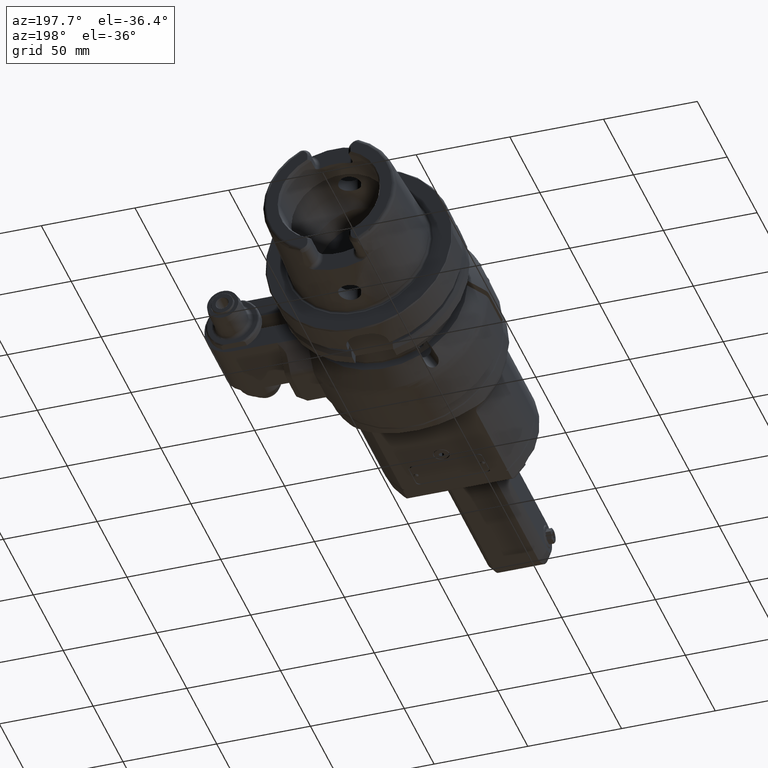
[diagram: clean part render]
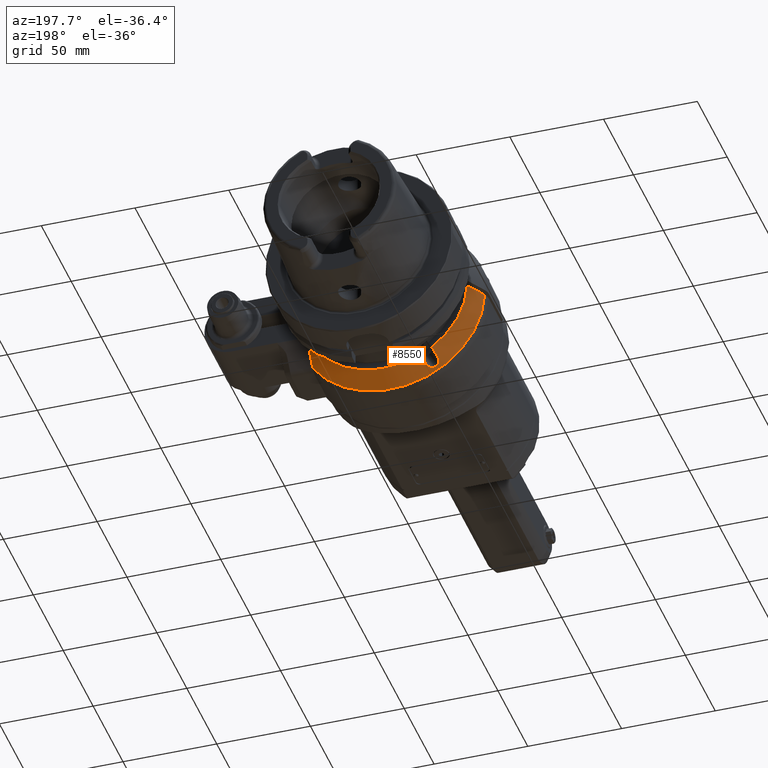
[diagram: same view with one face highlighted and labeled with its STEP entity id]
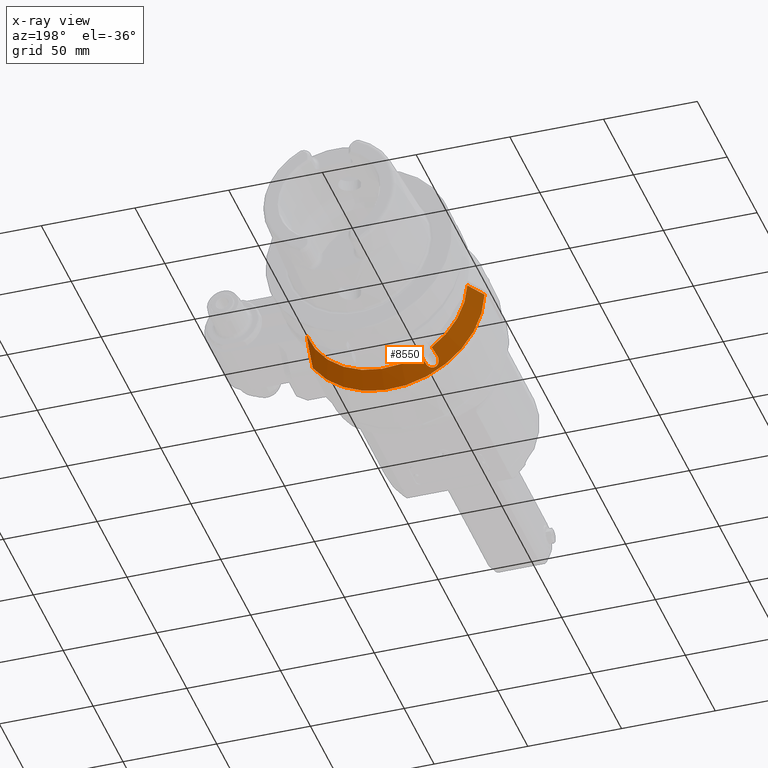
[diagram: x-ray of the same camera — body ghosted, the highlighted face saturated]
A machine part, auxiliary view. The second image highlights one B-rep face of the part: STEP entity #8550.
The next image is the same camera in x-ray: the body ghosted, the highlighted face saturated — about 0% of this face is hidden behind the body in this view.
In plain terms, the highlighted conical surface has half-angle 30 deg.
Its self-contained STEP definition (entity closure, byte-faithful):
#62=CONICAL_SURFACE('',#9270,46.96410161514,0.523598775598299);
#139=(
BOUNDED_CURVE()
B_SPLINE_CURVE(2,(#13754,#13755,#13756),.UNSPECIFIED.,.F.,.F.)
B_SPLINE_CURVE_WITH_KNOTS((3,3),(-2.43290769105801,-0.320305328668483),
 .UNSPECIFIED.)
CURVE()
GEOMETRIC_REPRESENTATION_ITEM()
RATIONAL_B_SPLINE_CURVE((1.03252076511009,1.03062027413364,1.00749895945509))
REPRESENTATION_ITEM('')
);
#748=FACE_OUTER_BOUND('',#1281,.T.);
#1281=EDGE_LOOP('',(#6523,#6524,#6525,#6526,#6527,#6528,#6529,#6530));
#1721=B_SPLINE_CURVE_WITH_KNOTS('',3,(#13875,#13876,#13877,#13878,#13879,
#13880,#13881,#13882,#13883,#13884),.UNSPECIFIED.,.F.,.F.,(4,3,3,4),(0.,
0.3333333333333,0.6666666666667,1.),.UNSPECIFIED.);
#1724=B_SPLINE_CURVE_WITH_KNOTS('',3,(#13937,#13938,#13939,#13940,#13941,
#13942,#13943,#13944,#13945,#13946,#13947,#13948,#13949,#13950,#13951,#13952,
#13953,#13954),.UNSPECIFIED.,.F.,.F.,(4,2,2,2,2,2,2,2,4),(1.11206982951625,
1.24885677734264,1.4029266724495,1.5444028479349,1.68587902342029,1.82735519890569,
1.96883137439109,2.12290126949794,2.25968821732541),.UNSPECIFIED.);
#1726=B_SPLINE_CURVE_WITH_KNOTS('',3,(#13976,#13977,#13978,#13979,#13980,
#13981,#13982,#13983,#13984,#13985),.UNSPECIFIED.,.F.,.F.,(4,3,3,4),(0.,
0.3333333333333,0.6666666666667,1.),.UNSPECIFIED.);
#1727=B_SPLINE_CURVE_WITH_KNOTS('',3,(#13991,#13992,#13993,#13994,#13995,
#13996,#13997,#13998,#13999,#14000),.UNSPECIFIED.,.F.,.F.,(4,3,3,4),(0.,
0.3333333333333,0.6666666666667,1.),.UNSPECIFIED.);
#3235=CIRCLE('',#9271,49.92820323028);
#3236=CIRCLE('',#9272,44.);
#3237=CIRCLE('',#9273,44.);
#3759=VERTEX_POINT('',#13742);
#3760=VERTEX_POINT('',#13753);
#3781=VERTEX_POINT('',#13872);
#3782=VERTEX_POINT('',#13874);
#3795=VERTEX_POINT('',#13935);
#3796=VERTEX_POINT('',#13936);
#3800=VERTEX_POINT('',#13975);
#3801=VERTEX_POINT('',#13989);
#4748=EDGE_CURVE('',#3759,#3760,#139,.T.);
#4775=EDGE_CURVE('',#3782,#3781,#1721,.T.);
#4793=EDGE_CURVE('',#3795,#3796,#1724,.F.);
#4800=EDGE_CURVE('',#3795,#3800,#1726,.T.);
#4802=EDGE_CURVE('',#3782,#3759,#3235,.T.);
#4803=EDGE_CURVE('',#3801,#3781,#3236,.T.);
#4804=EDGE_CURVE('',#3801,#3796,#1727,.T.);
#4805=EDGE_CURVE('',#3760,#3800,#3237,.T.);
#6523=ORIENTED_EDGE('',*,*,#4802,.F.);
#6524=ORIENTED_EDGE('',*,*,#4775,.T.);
#6525=ORIENTED_EDGE('',*,*,#4803,.F.);
#6526=ORIENTED_EDGE('',*,*,#4804,.T.);
#6527=ORIENTED_EDGE('',*,*,#4793,.F.);
#6528=ORIENTED_EDGE('',*,*,#4800,.T.);
#6529=ORIENTED_EDGE('',*,*,#4805,.F.);
#6530=ORIENTED_EDGE('',*,*,#4748,.F.);
#8550=ADVANCED_FACE('',(#748),#62,.T.);
#9270=AXIS2_PLACEMENT_3D('',#13987,#10733,#10734);
#9271=AXIS2_PLACEMENT_3D('',#13988,#10735,#10736);
#9272=AXIS2_PLACEMENT_3D('',#13990,#10737,#10738);
#9273=AXIS2_PLACEMENT_3D('',#14001,#10739,#10740);
#10733=DIRECTION('center_axis',(0.,-1.,0.));
#10734=DIRECTION('ref_axis',(-1.,0.,0.));
#10735=DIRECTION('center_axis',(0.,-1.,0.));
#10736=DIRECTION('ref_axis',(-0.999548602989596,0.,-0.0300431400080999));
#10737=DIRECTION('center_axis',(0.,1.,0.));
#10738=DIRECTION('ref_axis',(-0.567304004296905,0.,-0.823508449688707));
#10739=DIRECTION('center_axis',(0.,1.,0.));
#10740=DIRECTION('ref_axis',(0.948863636363632,0.,-0.315686235979311));
#13742=CARTESIAN_POINT('',(41.75,29.23205080757,-27.38180011986));
#13753=CARTESIAN_POINT('',(41.74999999999,39.5,-13.89019438316));
#13754=CARTESIAN_POINT('Ctrl Pts',(41.75,29.2320508075673,-27.3818001198562));
#13755=CARTESIAN_POINT('Ctrl Pts',(41.75,36.0442956678564,-20.2102413126131));
#13756=CARTESIAN_POINT('Ctrl Pts',(41.75,39.4999999999632,-13.8901943831554));
#13872=CARTESIAN_POINT('',(-43.97442438509,39.5,-1.5));
#13874=CARTESIAN_POINT('',(-49.9056607292726,29.2320595617708,-1.50000007595379));
#13875=CARTESIAN_POINT('Ctrl Pts',(-49.90565567486,29.23206831446,-1.5));
#13876=CARTESIAN_POINT('Ctrl Pts',(-49.24668115316,30.37293045262,-1.5));
#13877=CARTESIAN_POINT('Ctrl Pts',(-48.5876765558151,31.5138242319948,-1.5));
#13878=CARTESIAN_POINT('Ctrl Pts',(-47.928662020786,32.6547122553555,-1.5));
#13879=CARTESIAN_POINT('Ctrl Pts',(-47.2696474857567,33.7956002787165,-1.5));
#13880=CARTESIAN_POINT('Ctrl Pts',(-46.6106230130433,34.9364825460635,-1.5));
#13881=CARTESIAN_POINT('Ctrl Pts',(-45.9515842405615,36.077363540237,-1.5));
#13882=CARTESIAN_POINT('Ctrl Pts',(-45.2925454680799,37.2182445344102,-1.5));
#13883=CARTESIAN_POINT('Ctrl Pts',(-44.63349239583,38.35912425541,-1.5));
#13884=CARTESIAN_POINT('Ctrl Pts',(-43.97442438509,39.5,-1.5));
#13935=CARTESIAN_POINT('',(-20.34687855495,34.5,-42.24182743261));
#13936=CARTESIAN_POINT('',(-26.40905638145,34.5,-38.74182743261));
#13937=CARTESIAN_POINT('Ctrl Pts',(-26.4090563814456,34.5000000000002,-38.7418274326129));
#13938=CARTESIAN_POINT('Ctrl Pts',(-26.5250786273062,34.0992085079157,-38.9427838572518));
#13939=CARTESIAN_POINT('Ctrl Pts',(-26.5877455833705,33.6780271021362,-39.1945532832522));
#13940=CARTESIAN_POINT('Ctrl Pts',(-26.5711996809164,32.8336229766582,-39.7934207779667));
#13941=CARTESIAN_POINT('Ctrl Pts',(-26.4721822625297,32.416786404141,-40.1489075806805));
#13942=CARTESIAN_POINT('Ctrl Pts',(-26.1383338430384,31.7689100689263,-40.8117265913294));
#13943=CARTESIAN_POINT('Ctrl Pts',(-25.8928265156274,31.4858969585476,-41.1623315039927));
#13944=CARTESIAN_POINT('Ctrl Pts',(-25.2551263794943,31.1011571537054,-41.8163473322267));
#13945=CARTESIAN_POINT('Ctrl Pts',(-24.8621451840586,31.,-42.1193241407055));
#13946=CARTESIAN_POINT('Ctrl Pts',(-24.0453321040545,31.,-42.5909113923235));
#13947=CARTESIAN_POINT('Ctrl Pts',(-23.5864558934365,31.1011571537054,-42.779754686541));
#13948=CARTESIAN_POINT('Ctrl Pts',(-22.7012115036422,31.4858969585476,-43.0050112903121));
#13949=CARTESIAN_POINT('Ctrl Pts',(-22.2748250788787,31.7689100689263,-43.0423244163336));
#13950=CARTESIAN_POINT('Ctrl Pts',(-21.5338827677997,32.416786404141,-43.000036123302));
#13951=CARTESIAN_POINT('Ctrl Pts',(-21.1765134567462,32.8336229766582,-42.908044321685));
#13952=CARTESIAN_POINT('Ctrl Pts',(-20.6496060415937,33.6780271021394,-42.6229397461805));
#13953=CARTESIAN_POINT('Ctrl Pts',(-20.4629008008123,34.0992085079223,-42.4427838572491));
#13954=CARTESIAN_POINT('Ctrl Pts',(-20.3468785549518,34.5000000000096,-42.2418274326083));
#13975=CARTESIAN_POINT('',(-18.89919836257,39.5,-39.7343717863));
#13976=CARTESIAN_POINT('Ctrl Pts',(-20.3468785549516,34.5000000000021,-42.2418274326133));
#13977=CARTESIAN_POINT('Ctrl Pts',(-20.1860524218991,35.0555636796788,-41.9632683989681));
#13978=CARTESIAN_POINT('Ctrl Pts',(-20.0252176577258,35.6111251834313,-41.6846944543344));
#13979=CARTESIAN_POINT('Ctrl Pts',(-19.864373839952,36.1666839961781,-41.4061048113106));
#13980=CARTESIAN_POINT('Ctrl Pts',(-19.7035300221781,36.7222428089251,-41.1275151682867));
#13981=CARTESIAN_POINT('Ctrl Pts',(-19.5426771511998,37.2777989309903,-40.8489098273047));
#13982=CARTESIAN_POINT('Ctrl Pts',(-19.381814745264,37.8333517949414,-40.5702879469552));
#13983=CARTESIAN_POINT('Ctrl Pts',(-19.2209523393283,38.3889046588924,-40.2916660666057));
#13984=CARTESIAN_POINT('Ctrl Pts',(-19.0600803989606,38.9444542651007,-40.0130276473512));
#13985=CARTESIAN_POINT('Ctrl Pts',(-18.8991983625711,39.5000000000014,-39.7343717863022));
#13987=CARTESIAN_POINT('Origin',(0.,34.36602540378,0.));
#13988=CARTESIAN_POINT('Origin',(0.,29.23205080757,0.));
#13989=CARTESIAN_POINT('',(-24.96137618907,39.5,-36.2343717863));
#13990=CARTESIAN_POINT('Origin',(0.,39.5,0.));
#13991=CARTESIAN_POINT('Ctrl Pts',(-24.9613761890695,39.4999999999995,-36.2343717862992));
#13992=CARTESIAN_POINT('Ctrl Pts',(-25.1222582254511,38.9444542651011,-36.5130276473516));
#13993=CARTESIAN_POINT('Ctrl Pts',(-25.2831302048165,38.3889046588926,-36.7916660440905));
#13994=CARTESIAN_POINT('Ctrl Pts',(-25.4439926282826,37.8333517949412,-37.070287914319));
#13995=CARTESIAN_POINT('Ctrl Pts',(-25.6048550517487,37.2777989309897,-37.3489097845476));
#13996=CARTESIAN_POINT('Ctrl Pts',(-25.7657079191777,36.7222428089239,-37.6275151275794));
#13997=CARTESIAN_POINT('Ctrl Pts',(-25.9265517183818,36.166683996177,-37.9061047813243));
#13998=CARTESIAN_POINT('Ctrl Pts',(-26.0873955175858,35.6111251834304,-38.1846944350692));
#13999=CARTESIAN_POINT('Ctrl Pts',(-26.2482302483888,35.0555636796788,-38.4632683989682));
#14000=CARTESIAN_POINT('Ctrl Pts',(-26.40905638145,34.5,-38.74182743261));
#14001=CARTESIAN_POINT('Origin',(0.,39.5,0.));